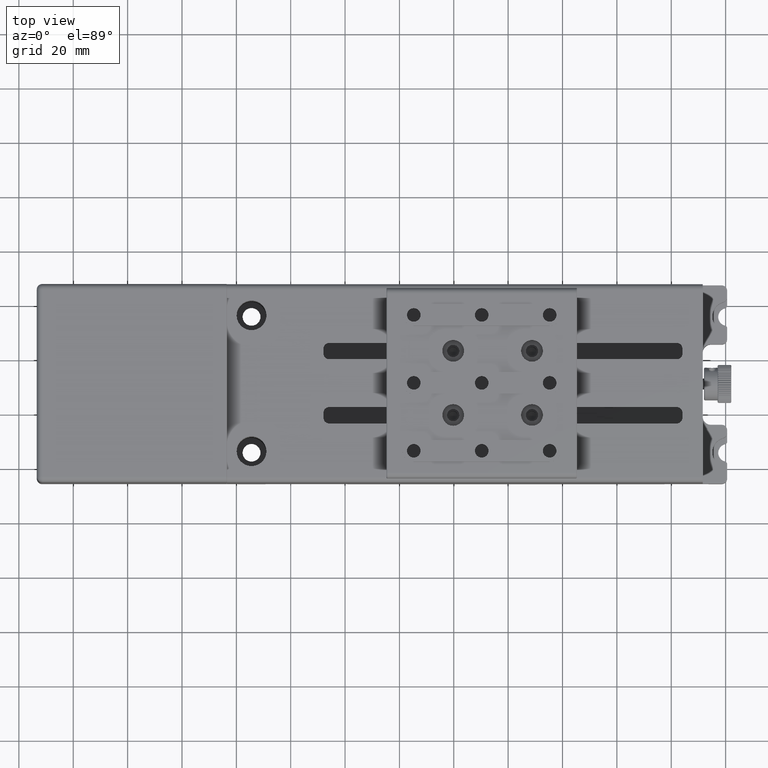
[diagram: clean part render]
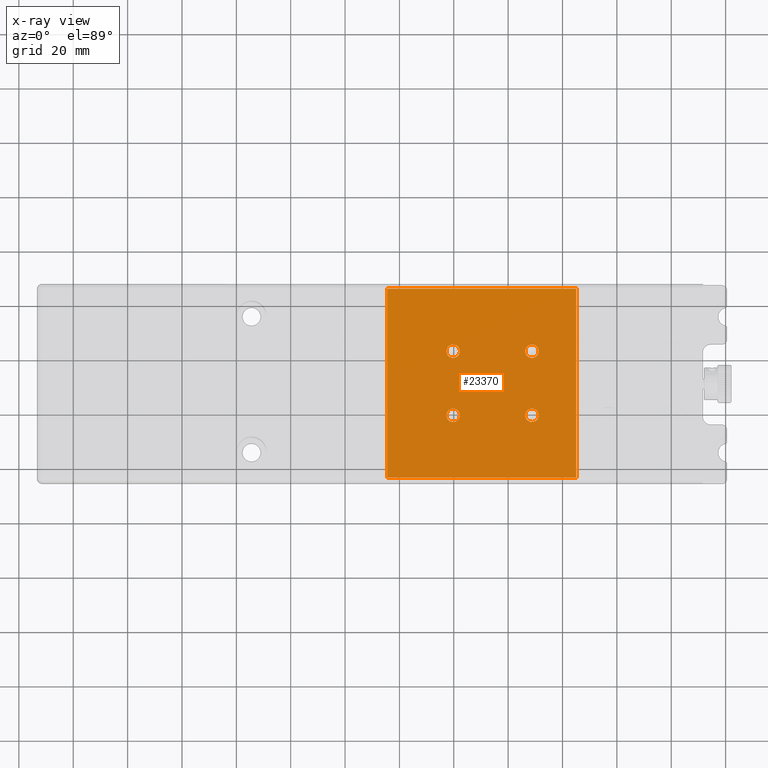
[diagram: x-ray — body ghosted, one internal face saturated and labeled with its STEP entity id]
A machine part, top view, then the same camera in x-ray: the body is ghosted and one INTERNAL B-rep face — a face not visible from any outside direction — is saturated and labeled: STEP entity #23370.
In plain terms, the highlighted planar face has unit normal (0, 0, -1).
Its self-contained STEP definition (entity closure, byte-faithful):
#274 = CARTESIAN_POINT ( 'NONE',  ( -24.54212659037870026, 26.03080254974729968, 30.50000000000000000 ) ) ;
#573 = CIRCLE ( 'NONE', #7239, 2.450000000000000622 ) ;
#981 = CARTESIAN_POINT ( 'NONE',  ( 28.75787340962130045, 2.830802549747235108, 30.50000000000000000 ) ) ;
#2688 = VERTEX_POINT ( 'NONE', #29097 ) ;
#2775 = DIRECTION ( 'NONE',  ( -5.551115123125779621E-17, 2.825024790874109881E-32, 1.000000000000000000 ) ) ;
#2802 = ORIENTED_EDGE ( 'NONE', *, *, #48418, .T. ) ;
#3659 = VERTEX_POINT ( 'NONE', #46249 ) ;
#4506 = CARTESIAN_POINT ( 'NONE',  ( -0.2421265903786924967, -20.76919745025274722, 30.50000000000000000 ) ) ;
#6342 = DIRECTION ( 'NONE',  ( 5.089112238197266234E-16, 1.000000000000000000, 0.000000000000000000 ) ) ;
#7230 = DIRECTION ( 'NONE',  ( -5.551115123125779621E-17, 0.000000000000000000, 1.000000000000000000 ) ) ;
#7239 = AXIS2_PLACEMENT_3D ( 'NONE', #9500, #46270, #15397 ) ;
#7429 = EDGE_CURVE ( 'NONE', #18713, #66036, #13078, .T. ) ;
#7516 = EDGE_CURVE ( 'NONE', #66036, #18713, #23026, .T. ) ;
#8231 = DIRECTION ( 'NONE',  ( 0.000000000000000000, -1.000000000000000000, -1.602373713730180011E-31 ) ) ;
#8375 = DIRECTION ( 'NONE',  ( -5.551115123125779621E-17, 7.860938548519259233E-32, 1.000000000000000000 ) ) ;
#8881 = ORIENTED_EDGE ( 'NONE', *, *, #48073, .T. ) ;
#9404 = CARTESIAN_POINT ( 'NONE',  ( 28.75787340962130045, -20.76919745025274722, 30.50000000000000000 ) ) ;
#9500 = CARTESIAN_POINT ( 'NONE',  ( 28.75787340962130045, -20.76919745025274722, 30.50000000000000000 ) ) ;
#9890 = LINE ( 'NONE', #53479, #32324 ) ;
#9956 = ORIENTED_EDGE ( 'NONE', *, *, #23278, .T. ) ;
#10050 = CIRCLE ( 'NONE', #11169, 2.450000000000000622 ) ;
#11022 = CARTESIAN_POINT ( 'NONE',  ( 28.75787340962130045, 2.830802549747235108, 30.50000000000000000 ) ) ;
#11169 = AXIS2_PLACEMENT_3D ( 'NONE', #9404, #8375, #56261 ) ;
#11550 = CARTESIAN_POINT ( 'NONE',  ( -0.2421265903786924967, 2.830802549747249763, 30.50000000000000000 ) ) ;
#12054 = EDGE_CURVE ( 'NONE', #64505, #37838, #18018, .T. ) ;
#12758 = FACE_BOUND ( 'NONE', #43143, .T. ) ;
#13078 = CIRCLE ( 'NONE', #66282, 2.449999999999999734 ) ;
#13461 = CARTESIAN_POINT ( 'NONE',  ( 28.75787340962130045, 5.280802549747229513, 30.50000000000000000 ) ) ;
#14382 = CARTESIAN_POINT ( 'NONE',  ( -0.2421265903786924967, 2.830802549747249763, 30.50000000000000000 ) ) ;
#15397 = DIRECTION ( 'NONE',  ( 0.000000000000000000, 1.000000000000000000, 0.000000000000000000 ) ) ;
#16511 = DIRECTION ( 'NONE',  ( -5.075305255429290705E-16, -1.000000000000000000, -1.884109751309115082E-31 ) ) ;
#16814 = CARTESIAN_POINT ( 'NONE',  ( 28.75787340962130045, 0.3808025497472404819, 30.50000000000000000 ) ) ;
#18018 = CIRCLE ( 'NONE', #65669, 2.449999999999999734 ) ;
#18555 = ORIENTED_EDGE ( 'NONE', *, *, #7516, .T. ) ;
#18713 = VERTEX_POINT ( 'NONE', #52680 ) ;
#19037 = EDGE_CURVE ( 'NONE', #34439, #3659, #36310, .T. ) ;
#19321 = CARTESIAN_POINT ( 'NONE',  ( 45.05787340962129406, 25.83080254974725065, 30.50000000000000000 ) ) ;
#19387 = CARTESIAN_POINT ( 'NONE',  ( -24.74212659037869955, -43.76919745025275432, 30.50000000000000000 ) ) ;
#22429 = ORIENTED_EDGE ( 'NONE', *, *, #19037, .T. ) ;
#22748 = CIRCLE ( 'NONE', #46171, 2.450000000000000622 ) ;
#22968 = EDGE_LOOP ( 'NONE', ( #25786, #65751 ) ) ;
#23026 = CIRCLE ( 'NONE', #31897, 2.449999999999999734 ) ;
#23278 = EDGE_CURVE ( 'NONE', #35316, #56011, #47817, .T. ) ;
#23370 = ADVANCED_FACE ( 'NONE', ( #45350, #65161, #60973, #12758, #43990 ), #28018, .T. ) ;
#25786 = ORIENTED_EDGE ( 'NONE', *, *, #53942, .T. ) ;
#27387 = ORIENTED_EDGE ( 'NONE', *, *, #48589, .T. ) ;
#28018 = PLANE ( 'NONE',  #34306 ) ;
#28389 = DIRECTION ( 'NONE',  ( 0.000000000000000000, 1.000000000000000000, 0.000000000000000000 ) ) ;
#29097 = CARTESIAN_POINT ( 'NONE',  ( -0.2421265903786914975, -18.31919745025275148, 30.50000000000000000 ) ) ;
#30001 = AXIS2_PLACEMENT_3D ( 'NONE', #4506, #57929, #63145 ) ;
#31897 = AXIS2_PLACEMENT_3D ( 'NONE', #11550, #53188, #6342 ) ;
#32316 = CARTESIAN_POINT ( 'NONE',  ( 28.75787340962130045, -23.21919745025279624, 30.50000000000000000 ) ) ;
#32324 = VECTOR ( 'NONE', #51511, 1000.000000000000000 ) ;
#33587 = EDGE_CURVE ( 'NONE', #61901, #38043, #10050, .T. ) ;
#33916 = CARTESIAN_POINT ( 'NONE',  ( 45.25787340962129690, 26.03080254974724994, 30.50000000000000000 ) ) ;
#34306 = AXIS2_PLACEMENT_3D ( 'NONE', #33916, #55079, #8231 ) ;
#34439 = VERTEX_POINT ( 'NONE', #19321 ) ;
#35208 = VERTEX_POINT ( 'NONE', #66446 ) ;
#35316 = VERTEX_POINT ( 'NONE', #38680 ) ;
#35532 = AXIS2_PLACEMENT_3D ( 'NONE', #981, #7230, #28389 ) ;
#35978 = DIRECTION ( 'NONE',  ( 5.089112238197264262E-16, 1.000000000000000000, 0.000000000000000000 ) ) ;
#36310 = LINE ( 'NONE', #64048, #67216 ) ;
#37838 = VERTEX_POINT ( 'NONE', #13461 ) ;
#38043 = VERTEX_POINT ( 'NONE', #48763 ) ;
#38661 = EDGE_LOOP ( 'NONE', ( #2802, #48728 ) ) ;
#38680 = CARTESIAN_POINT ( 'NONE',  ( -24.54212659037870026, -43.76919745025275432, 30.50000000000000000 ) ) ;
#41878 = CARTESIAN_POINT ( 'NONE',  ( -0.2421265903786924967, -20.76919745025274722, 30.50000000000000000 ) ) ;
#43143 = EDGE_LOOP ( 'NONE', ( #18555, #53780 ) ) ;
#43990 = FACE_OUTER_BOUND ( 'NONE', #51472, .T. ) ;
#45350 = FACE_BOUND ( 'NONE', #22968, .T. ) ;
#46171 = AXIS2_PLACEMENT_3D ( 'NONE', #41878, #2775, #35978 ) ;
#46249 = CARTESIAN_POINT ( 'NONE',  ( 45.05787340962129406, -43.76919745025275432, 30.50000000000000000 ) ) ;
#46270 = DIRECTION ( 'NONE',  ( -5.551115123125779621E-17, 0.000000000000000000, 1.000000000000000000 ) ) ;
#47485 = DIRECTION ( 'NONE',  ( 5.075305255429290705E-16, 1.000000000000000000, 1.884109751309115082E-31 ) ) ;
#47817 = LINE ( 'NONE', #274, #67549 ) ;
#48073 = EDGE_CURVE ( 'NONE', #56011, #34439, #9890, .T. ) ;
#48418 = EDGE_CURVE ( 'NONE', #2688, #35208, #65610, .T. ) ;
#48589 = EDGE_CURVE ( 'NONE', #37838, #64505, #65446, .T. ) ;
#48728 = ORIENTED_EDGE ( 'NONE', *, *, #60153, .T. ) ;
#48763 = CARTESIAN_POINT ( 'NONE',  ( 28.75787340962130045, -18.31919745025275148, 30.50000000000000000 ) ) ;
#51050 = DIRECTION ( 'NONE',  ( 1.416100796715760962E-15, 1.000000000000000000, 0.000000000000000000 ) ) ;
#51472 = EDGE_LOOP ( 'NONE', ( #9956, #8881, #22429, #57202 ) ) ;
#51487 = DIRECTION ( 'NONE',  ( -5.551115123125779621E-17, 2.825024790874139988E-32, 1.000000000000000000 ) ) ;
#51511 = DIRECTION ( 'NONE',  ( 1.000000000000000000, -3.850658456281935279E-16, 5.551115123125779621E-17 ) ) ;
#52680 = CARTESIAN_POINT ( 'NONE',  ( -0.2421265903786934959, 0.3808025497472575238, 30.50000000000000000 ) ) ;
#53188 = DIRECTION ( 'NONE',  ( -5.551115123125779621E-17, 2.825024790874139988E-32, 1.000000000000000000 ) ) ;
#53479 = CARTESIAN_POINT ( 'NONE',  ( 45.25787340962129690, 25.83080254974725065, 30.50000000000000000 ) ) ;
#53780 = ORIENTED_EDGE ( 'NONE', *, *, #7429, .T. ) ;
#53942 = EDGE_CURVE ( 'NONE', #38043, #61901, #573, .T. ) ;
#55079 = DIRECTION ( 'NONE',  ( 5.551115123125779621E-17, 1.602373713730180011E-31, -1.000000000000000000 ) ) ;
#56011 = VERTEX_POINT ( 'NONE', #66967 ) ;
#56261 = DIRECTION ( 'NONE',  ( 1.416100796715760567E-15, 1.000000000000000000, 0.000000000000000000 ) ) ;
#56269 = DIRECTION ( 'NONE',  ( -5.551115123125779621E-17, 7.860938548519349003E-32, 1.000000000000000000 ) ) ;
#57202 = ORIENTED_EDGE ( 'NONE', *, *, #65819, .T. ) ;
#57774 = VECTOR ( 'NONE', #60677, 1000.000000000000000 ) ;
#57856 = CARTESIAN_POINT ( 'NONE',  ( -0.2421265903786914975, 5.280802549747249941, 30.50000000000000000 ) ) ;
#57929 = DIRECTION ( 'NONE',  ( -5.551115123125779621E-17, 2.825024790874109881E-32, 1.000000000000000000 ) ) ;
#60153 = EDGE_CURVE ( 'NONE', #35208, #2688, #22748, .T. ) ;
#60677 = DIRECTION ( 'NONE',  ( -1.000000000000000000, 1.110223024625158020E-16, -5.551115123125779621E-17 ) ) ;
#60973 = FACE_BOUND ( 'NONE', #61335, .T. ) ;
#61335 = EDGE_LOOP ( 'NONE', ( #27387, #61982 ) ) ;
#61901 = VERTEX_POINT ( 'NONE', #32316 ) ;
#61982 = ORIENTED_EDGE ( 'NONE', *, *, #12054, .T. ) ;
#62941 = DIRECTION ( 'NONE',  ( 5.089112238197266234E-16, 1.000000000000000000, 0.000000000000000000 ) ) ;
#63145 = DIRECTION ( 'NONE',  ( 5.089112238197264262E-16, 1.000000000000000000, 0.000000000000000000 ) ) ;
#64048 = CARTESIAN_POINT ( 'NONE',  ( 45.05787340962129406, -43.96919745025275006, 30.50000000000000000 ) ) ;
#64505 = VERTEX_POINT ( 'NONE', #16814 ) ;
#65161 = FACE_BOUND ( 'NONE', #38661, .T. ) ;
#65446 = CIRCLE ( 'NONE', #35532, 2.449999999999999734 ) ;
#65610 = CIRCLE ( 'NONE', #30001, 2.450000000000000622 ) ;
#65669 = AXIS2_PLACEMENT_3D ( 'NONE', #11022, #56269, #51050 ) ;
#65751 = ORIENTED_EDGE ( 'NONE', *, *, #33587, .T. ) ;
#65819 = EDGE_CURVE ( 'NONE', #3659, #35316, #66589, .T. ) ;
#66036 = VERTEX_POINT ( 'NONE', #57856 ) ;
#66282 = AXIS2_PLACEMENT_3D ( 'NONE', #14382, #51487, #62941 ) ;
#66446 = CARTESIAN_POINT ( 'NONE',  ( -0.2421265903786934959, -23.21919745025279624, 30.50000000000000000 ) ) ;
#66589 = LINE ( 'NONE', #19387, #57774 ) ;
#66967 = CARTESIAN_POINT ( 'NONE',  ( -24.54212659037870026, 25.83080254974730039, 30.50000000000000000 ) ) ;
#67216 = VECTOR ( 'NONE', #16511, 1000.000000000000000 ) ;
#67549 = VECTOR ( 'NONE', #47485, 1000.000000000000000 ) ;